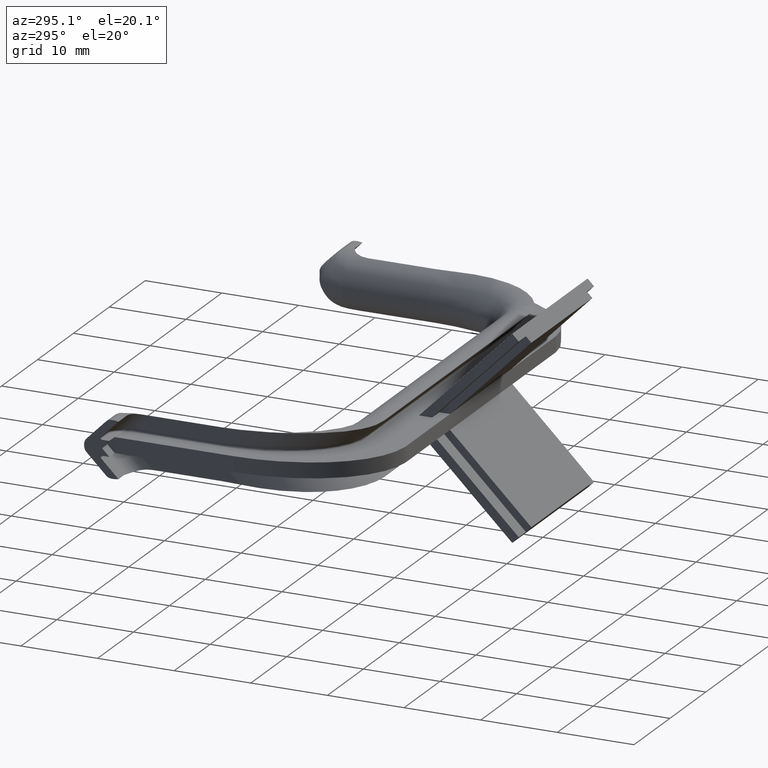
[diagram: clean part render]
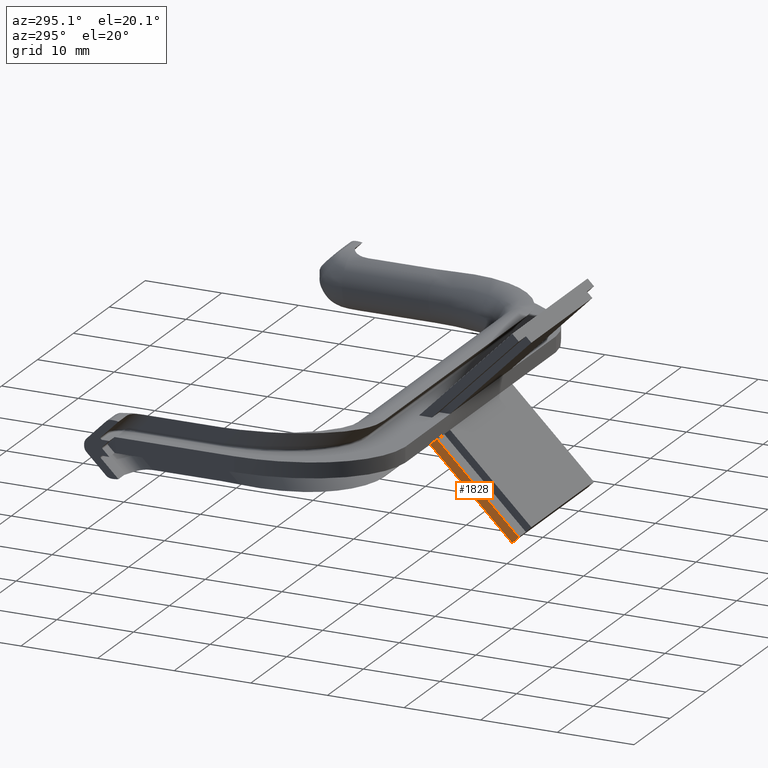
[diagram: same view with one face highlighted and labeled with its STEP entity id]
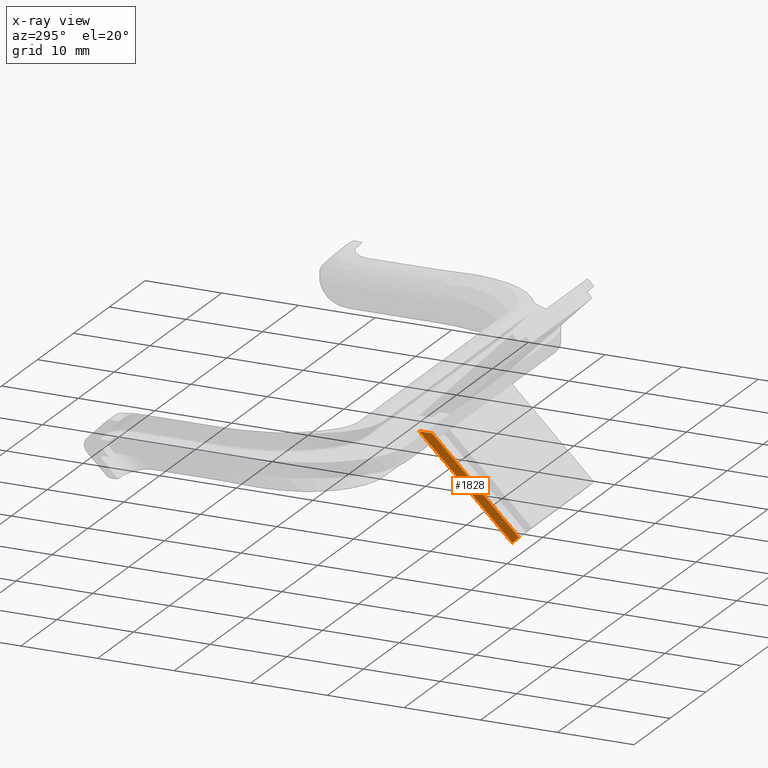
[diagram: x-ray of the same camera — body ghosted, the highlighted face saturated]
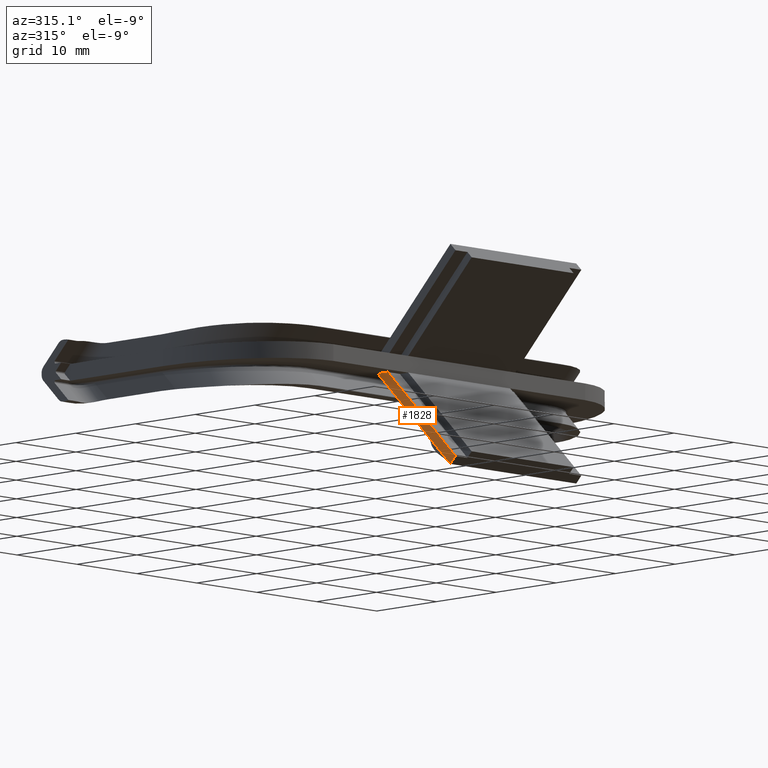
[diagram: same view with one face highlighted and labeled with its STEP entity id]
A machine part, auxiliary view. The second image highlights one B-rep face of the part: STEP entity #1828.
The next image is the same camera in x-ray: the body ghosted, the highlighted face saturated — about 0% of this face is hidden behind the body in this view.
A second angle (auxiliary view) of the same face is appended — the face is thin or edge-on in the first view.
In plain terms, the highlighted planar face has unit normal (-1, 0, 0).
Its self-contained STEP definition (entity closure, byte-faithful):
#133=PLANE('',#2013);
#235=FACE_OUTER_BOUND('',#339,.T.);
#339=EDGE_LOOP('',(#1656,#1657,#1658,#1659));
#388=LINE('',#2638,#544);
#494=LINE('',#4015,#650);
#496=LINE('',#4019,#652);
#497=LINE('',#4020,#653);
#544=VECTOR('',#2136,10.);
#650=VECTOR('',#2478,10.);
#652=VECTOR('',#2482,10.);
#653=VECTOR('',#2483,10.);
#776=VERTEX_POINT('',#2635);
#777=VERTEX_POINT('',#2637);
#882=VERTEX_POINT('',#4014);
#883=VERTEX_POINT('',#4018);
#953=EDGE_CURVE('',#776,#777,#388,.T.);
#1146=EDGE_CURVE('',#777,#882,#494,.T.);
#1148=EDGE_CURVE('',#883,#776,#496,.T.);
#1149=EDGE_CURVE('',#883,#882,#497,.T.);
#1656=ORIENTED_EDGE('',*,*,#1148,.F.);
#1657=ORIENTED_EDGE('',*,*,#1149,.T.);
#1658=ORIENTED_EDGE('',*,*,#1146,.F.);
#1659=ORIENTED_EDGE('',*,*,#953,.F.);
#1828=ADVANCED_FACE('',(#235),#133,.T.);
#2013=AXIS2_PLACEMENT_3D('',#4017,#2480,#2481);
#2136=DIRECTION('',(0.,-1.,0.));
#2478=DIRECTION('',(0.,-0.707106781186547,-0.707106781186548));
#2480=DIRECTION('center_axis',(-1.,0.,0.));
#2481=DIRECTION('ref_axis',(0.,0.,1.));
#2482=DIRECTION('',(0.,0.707106781186547,0.707106781186548));
#2483=DIRECTION('',(0.,-0.707106781186548,0.707106781186547));
#2635=CARTESIAN_POINT('',(23.5,3.11126983722088,-1.));
#2637=CARTESIAN_POINT('',(23.5,1.41421356237326,-1.));
#2638=CARTESIAN_POINT('',(23.5,6.13313315417913,-1.));
#4014=CARTESIAN_POINT('',(23.5,-9.89949493661157,-12.3137084989848));
#4015=CARTESIAN_POINT('',(23.5,0.707106781186646,-1.70710678118661));
#4017=CARTESIAN_POINT('Origin',(23.5,0.707106781186646,-1.70710678118661));
#4018=CARTESIAN_POINT('',(23.5,-9.05096679918775,-13.1622366364086));
#4019=CARTESIAN_POINT('',(23.5,1.55563491861046,-2.55563491861042));
#4020=CARTESIAN_POINT('',(23.5,-9.86413959755224,-12.3490638380441));